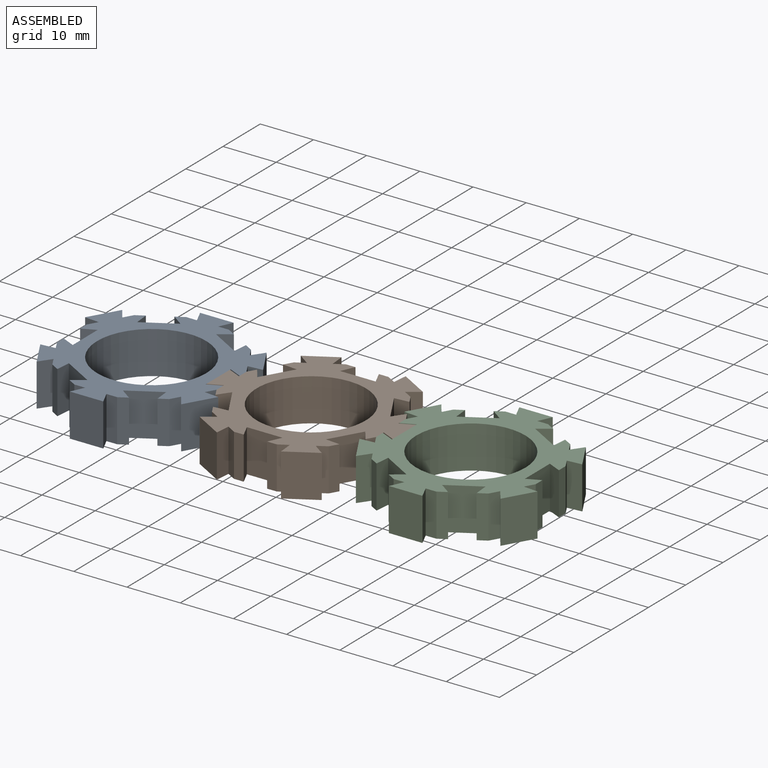
[diagram: assembled view]
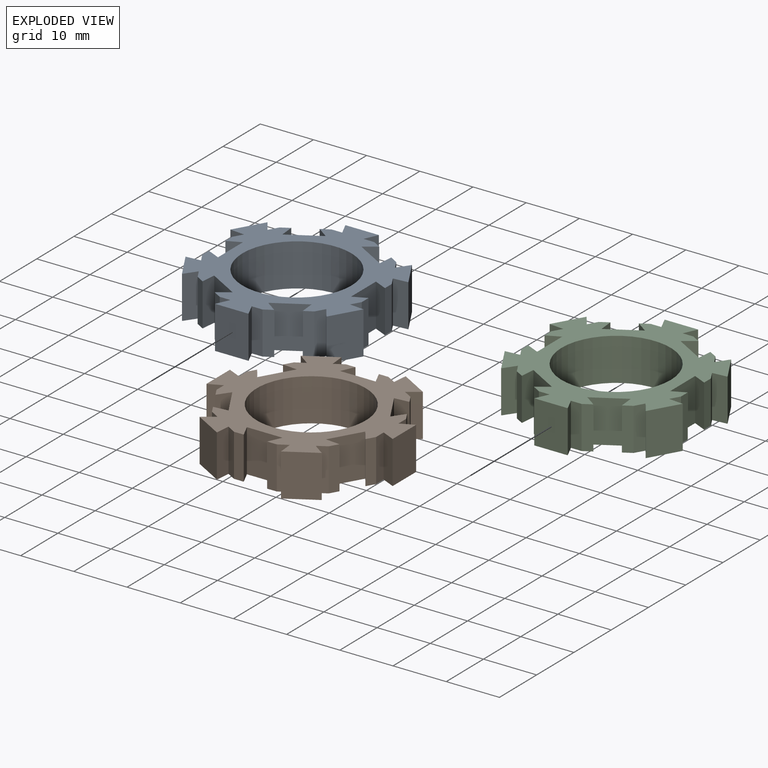
[diagram: exploded view]
GUIDED TOUR — MATED ASSEMBLY (Onshape document d0f964e4c2abdf80b7cb68ac, AutoMate assembly d0f964e4c2abdf80b7cb68ac_d33c1252032fe36a590fd62e_a8c66a222fe59a05ba9b0ecd_default)

This assembly has 3 components, labeled P0..P2 below (a component is one placed occurrence of a part; the same part can appear more than once), held together by 2 mates. A mate is a constraint between two components; its type names the relative motion it leaves free:
  PLANAR — leaves sliding in the plane through the listed point (normal = the listed direction) and rotation about that normal free.
Axis/direction vectors are unit vectors and 'through' points are millimeter coordinates, both in the assembly's world frame.

MATES
  1. PLANAR "Planar 2": P0 <-> P1, direction (0.000, -1.000, 0.000) through (-10.77, 34.13, 4.00) mm
  2. PLANAR "Planar 1": P2 <-> P1, direction (0.000, 1.000, 0.000) through (24.23, 34.13, 4.00) mm

ASSEMBLY ORDER
  1. P1 — the base component [order heuristic]
  2. P0 [order heuristic]
  3. P2 [order heuristic]
Order-tag legend:
  [order heuristic] — this assembly is geometrically interlocked (no collision-free removal order exists), so components are listed in mate-graph order; insertion feasibility is not verified.

Of the 3 components, 3 carry the full construction recipe — the FeatureScript program that regenerates the part's solid from scratch; the rest are supplied as boundary geometry only.
Each toured component is shown spotlighted twice — in the assembled view, then in the exploded view, where a leader line traces a displaced component back to its assembled socket (saturated green if recipe-attached, orange if geometry-only; every other component desaturated gray) — followed by its recipe or geometry summary and the mates that hold it.
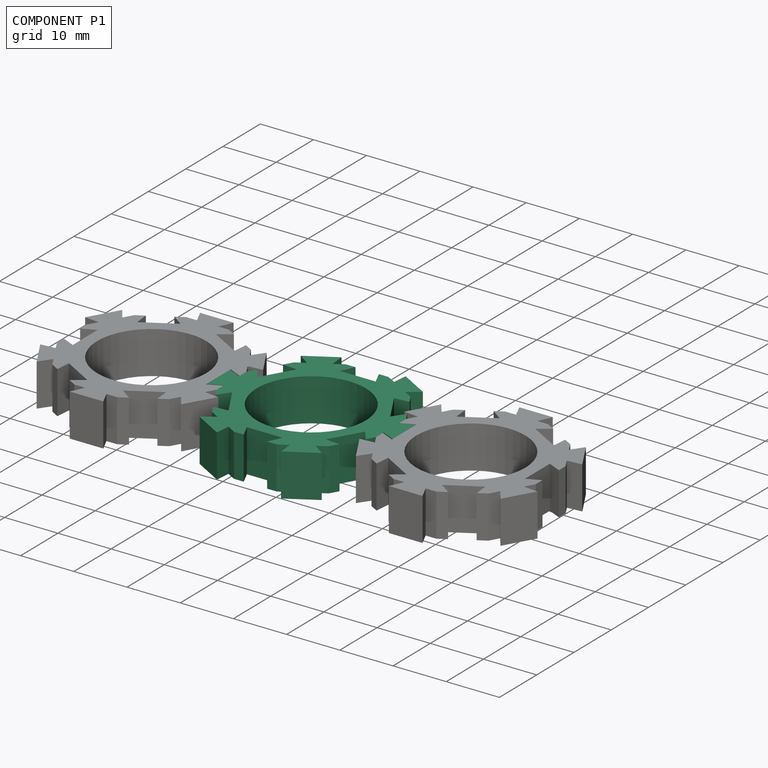
[diagram: component P1 — assembled]
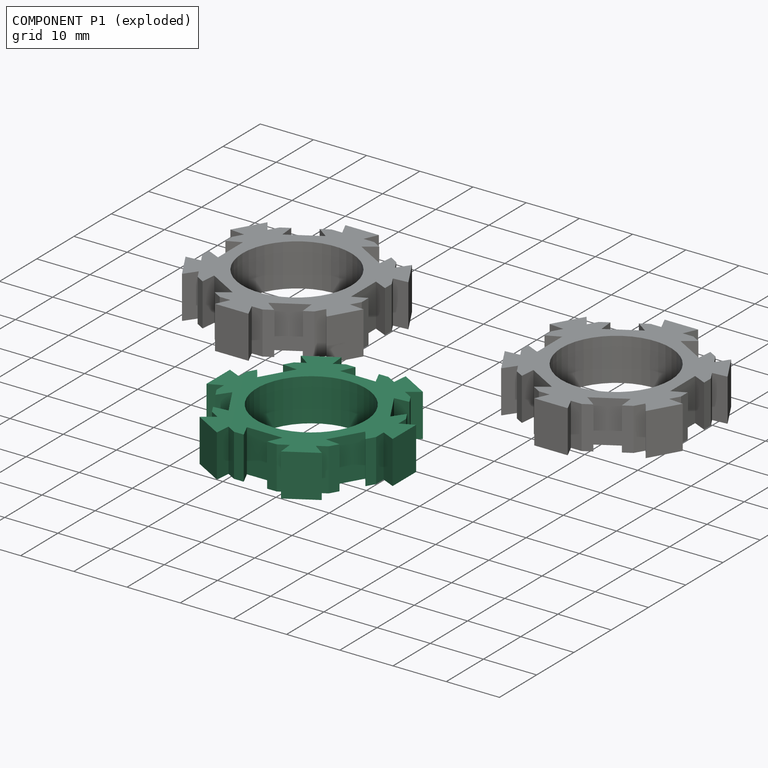
[diagram: component P1 — exploded]
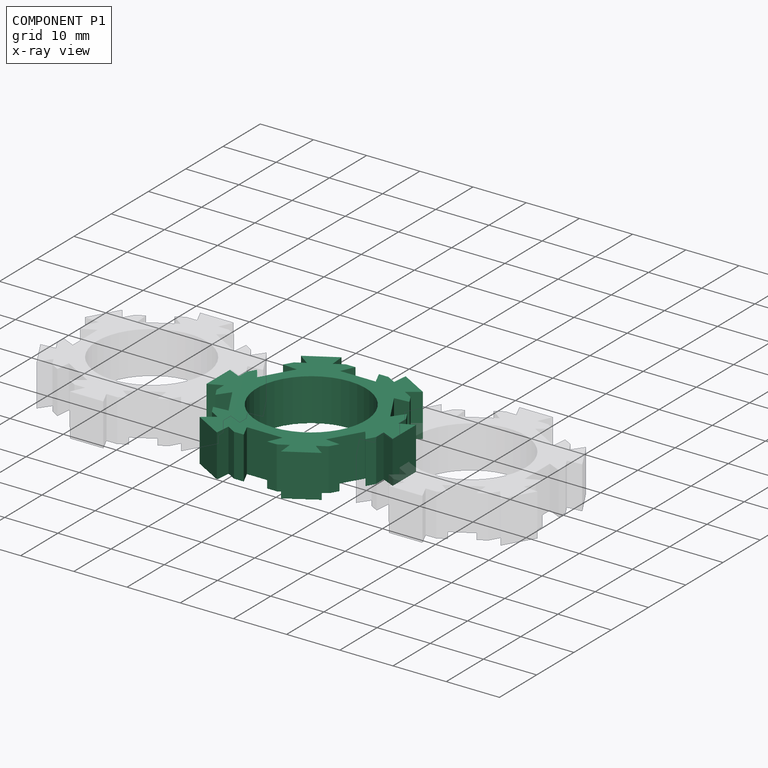
[diagram: component P1 — x-ray view]
COMPONENT P1 — same part as P0 (CADFS 00834193); its construction recipe is shown at P0.
Held by: PLANAR mate "Planar 2" to P0; PLANAR mate "Planar 1" to P2.
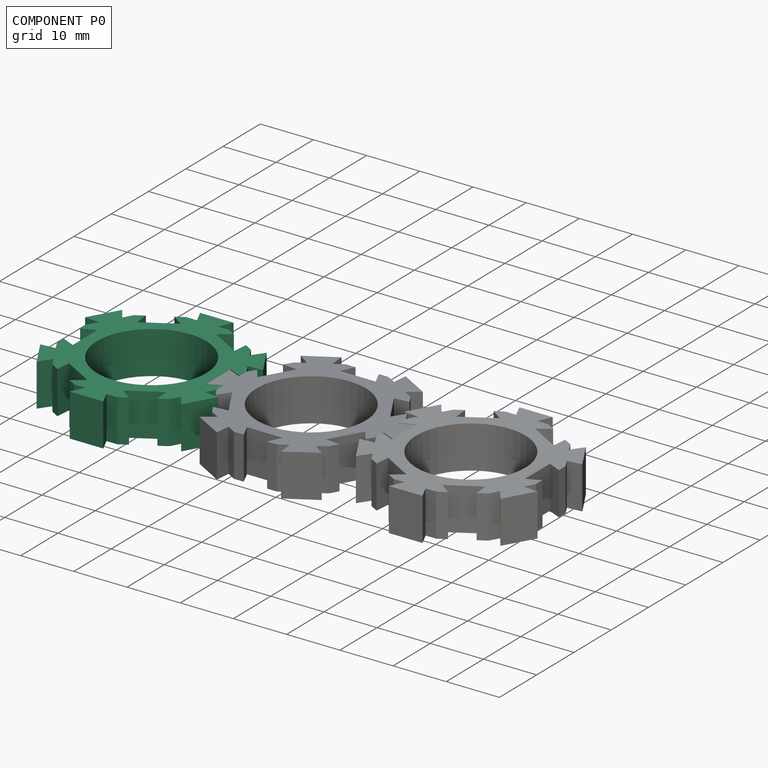
[diagram: component P0 — assembled]
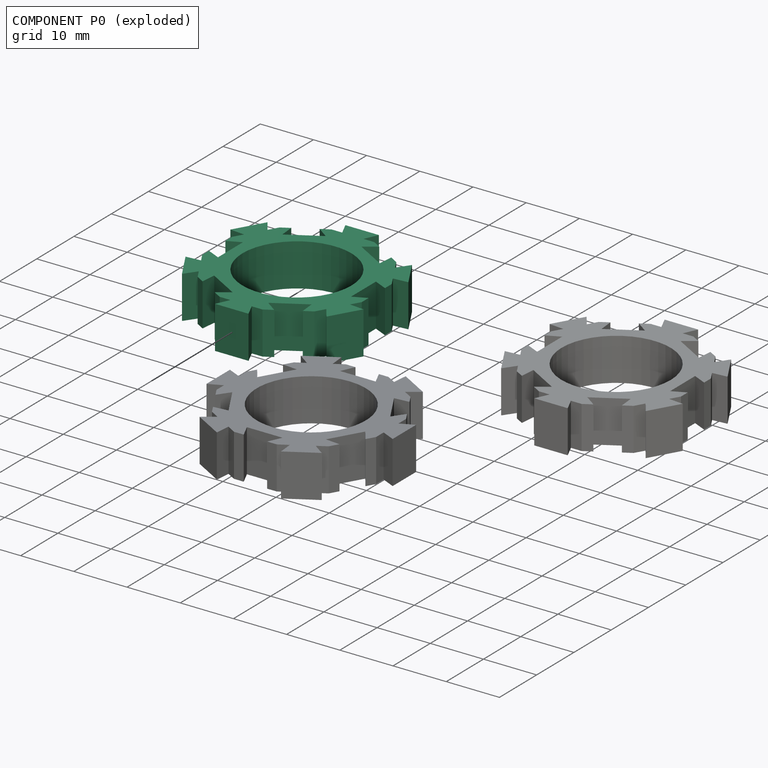
[diagram: component P0 — exploded]
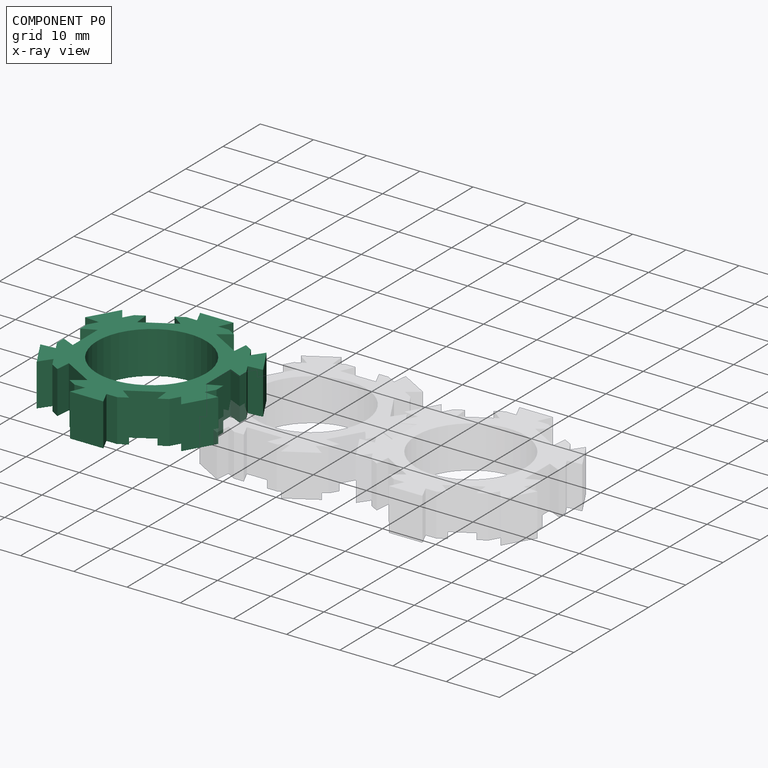
[diagram: component P0 — x-ray view]
COMPONENT P0 — recipe-attached (CADFS 00834193, mesh-verified: the recipe's output STEP matches this component's geometry to below the mesh-comparison resolution (tessellation chordal tolerance ~0.0736 mm)).
Held by: PLANAR mate "Planar 2" to P1.
Construction recipe (FeatureScript — the CAD program that rebuilds this solid; sketch coordinates are in the units given by the * unit suffixes, e.g. mm):

FeatureScript 1511;
import(path : "onshape/std/geometry.fs", version : "1511.0");
import(path : "onshape/std/common.fs", version : "1511.0");
const mm = millimeter;
const VERTEX = EntityType.VERTEX;
const EDGE = EntityType.EDGE;
const FACE = EntityType.FACE;
const BODY = EntityType.BODY;
function v(x, y){return vector(x, y);}
function OD(order){return orderDisambiguation(order);}
function OSD(set){return originalSetDisambiguation(set);}
function TD(topology){return topologyDisambiguation(topology);}
function TDD(query){return trueDependencyDisambiguation(query);}
function sQuery(a, b, c) {return sketchEntityQuery(a, b, c);}

annotation { "Feature Type Name" : "Feature", "Feature Type Description" : "" }
export const myFeature = defineFeature(function(context is Context, id is Id, definition is map)
    precondition{}
    {
        {
            var Q0;
            Q0=qCreatedBy(makeId("Top.planeOp"),FACE);
            var sketch = newSketch(context, id + "F0", { "sketchPlane" : qUnion([Q0])});
            skCircle(sketch, "E0", {"center": v(54.4, 0) * mm, "radius": 10.25 * mm});
            skLineSegment(sketch, "E1.1", {"start": v(57.74, 12.5) * mm, "end": v(63.54, 9.15) * mm});
            skLineSegment(sketch, "E1.3", {"start": v(66.9, 3.35) * mm, "end": v(66.9, -3.35) * mm});
            skLineSegment(sketch, "E1.5", {"start": v(63.54, -9.15) * mm, "end": v(57.74, -12.5) * mm});
            skLineSegment(sketch, "E1.7", {"start": v(51.04, -12.5) * mm, "end": v(45.24, -9.15) * mm});
            skLineSegment(sketch, "E1.9", {"start": v(41.9, -3.35) * mm, "end": v(41.9, 3.35) * mm});
            skLineSegment(sketch, "E1.11", {"start": v(45.24, 9.15) * mm, "end": v(51.04, 12.5) * mm});
            skPoint(sketch, "E1.0.midPoint", {"position": v(54.4, 12.5) * mm});
            skLineSegment(sketch, "E2.0", {"start": v(50.38, 15) * mm, "end": v(52.4, 15) * mm});
            skLineSegment(sketch, "E2.1", {"start": v(58.41, 15) * mm, "end": v(59.99, 14.1) * mm});
            skLineSegment(sketch, "E2.2", {"start": v(65.38, 10.98) * mm, "end": v(66.38, 9.23) * mm});
            skLineSegment(sketch, "E2.3", {"start": v(69.4, 4.02) * mm, "end": v(69.4, 2.2) * mm});
            skLineSegment(sketch, "E2.4", {"start": v(69.4, -4.02) * mm, "end": v(68.38, -5.77) * mm});
            skLineSegment(sketch, "E2.5", {"start": v(65.38, -10.98) * mm, "end": v(63.8, -11.9) * mm});
            skLineSegment(sketch, "E2.6", {"start": v(58.41, -15) * mm, "end": v(56.4, -15) * mm});
            skLineSegment(sketch, "E2.7", {"start": v(50.38, -15) * mm, "end": v(48.8, -14.1) * mm});
            skLineSegment(sketch, "E2.8", {"start": v(43.41, -10.98) * mm, "end": v(42.4, -9.23) * mm});
            skLineSegment(sketch, "E2.9", {"start": v(39.4, -4.02) * mm, "end": v(39.4, -2.2) * mm});
            skLineSegment(sketch, "E2.10", {"start": v(39.4, 4.02) * mm, "end": v(40.4, 5.77) * mm});
            skLineSegment(sketch, "E2.11", {"start": v(43.41, 10.98) * mm, "end": v(44.99, 11.9) * mm});
            skPoint(sketch, "E2.0.midPoint", {"position": v(54.4, 15) * mm});
            skLineSegment(sketch, "E3.1.0", {"start": v(48.8, 14.1) * mm, "end": v(51.04, 12.5) * mm});
            skLineSegment(sketch, "E3.1.1", {"start": v(44.99, 11.9) * mm, "end": v(45.24, 9.15) * mm});
            skLineSegment(sketch, "E3.3.0", {"start": v(39.4, 2.2) * mm, "end": v(41.9, 3.35) * mm});
            skLineSegment(sketch, "E3.3.1", {"start": v(39.4, -2.2) * mm, "end": v(41.9, -3.35) * mm});
            skLineSegment(sketch, "E3.5.0", {"start": v(44.99, -11.9) * mm, "end": v(45.24, -9.15) * mm});
            skLineSegment(sketch, "E3.5.1", {"start": v(48.8, -14.1) * mm, "end": v(51.04, -12.5) * mm});
            skLineSegment(sketch, "E3.7.0", {"start": v(59.99, -14.1) * mm, "end": v(57.74, -12.5) * mm});
            skLineSegment(sketch, "E3.7.1", {"start": v(63.8, -11.9) * mm, "end": v(63.54, -9.15) * mm});
            skLineSegment(sketch, "E3.9.0", {"start": v(69.4, -2.2) * mm, "end": v(66.9, -3.35) * mm});
            skLineSegment(sketch, "E3.9.1", {"start": v(69.4, 2.2) * mm, "end": v(66.9, 3.35) * mm});
            skLineSegment(sketch, "E3.11.0", {"start": v(63.8, 11.9) * mm, "end": v(63.54, 9.15) * mm});
            skLineSegment(sketch, "E3.11.1", {"start": v(59.99, 14.1) * mm, "end": v(57.74, 12.5) * mm});
            skLineSegment(sketch, "E4", {"start": v(57.74, 15) * mm, "end": v(57.54, 15) * mm});
            skLineSegment(sketch, "E5", {"start": v(57.54, 17.5) * mm, "end": v(56.4, 15) * mm});
            skLineSegment(sketch, "E6.MirrorCS", {"start": v(51.24, 17.5) * mm, "end": v(52.4, 15) * mm});
            skLineSegment(sketch, "E7", {"start": v(51.24, 17.5) * mm, "end": v(57.54, 17.5) * mm});
            skLineSegment(sketch, "E8.1.0", {"start": v(37.66, 6.02) * mm, "end": v(40.4, 5.77) * mm});
            skLineSegment(sketch, "E8.1.1", {"start": v(37.66, 6.02) * mm, "end": v(40.81, 11.48) * mm});
            skLineSegment(sketch, "E8.1.2", {"start": v(40.81, 11.48) * mm, "end": v(42.4, 9.23) * mm});
            skLineSegment(sketch, "E8.2.0", {"start": v(40.81, -11.48) * mm, "end": v(42.4, -9.23) * mm});
            skLineSegment(sketch, "E8.2.1", {"start": v(40.81, -11.48) * mm, "end": v(37.66, -6.02) * mm});
            skLineSegment(sketch, "E8.2.2", {"start": v(37.66, -6.02) * mm, "end": v(40.4, -5.77) * mm});
            skLineSegment(sketch, "E8.3.0", {"start": v(57.54, -17.5) * mm, "end": v(56.4, -15) * mm});
            skLineSegment(sketch, "E8.3.1", {"start": v(57.54, -17.5) * mm, "end": v(51.24, -17.5) * mm});
            skLineSegment(sketch, "E8.3.2", {"start": v(51.24, -17.5) * mm, "end": v(52.4, -15) * mm});
            skLineSegment(sketch, "E8.4.0", {"start": v(71.12, -6.02) * mm, "end": v(68.38, -5.77) * mm});
            skLineSegment(sketch, "E8.4.1", {"start": v(71.12, -6.02) * mm, "end": v(67.98, -11.48) * mm});
            skLineSegment(sketch, "E8.4.2", {"start": v(67.98, -11.48) * mm, "end": v(66.38, -9.23) * mm});
            skLineSegment(sketch, "E8.5.0", {"start": v(67.97, 11.48) * mm, "end": v(66.38, 9.23) * mm});
            skLineSegment(sketch, "E8.5.1", {"start": v(67.97, 11.48) * mm, "end": v(71.12, 6.02) * mm});
            skLineSegment(sketch, "E8.5.2", {"start": v(71.12, 6.02) * mm, "end": v(68.38, 5.77) * mm});
            skLineSegment(sketch, "E9.trimOffspring", {"start": v(48.8, 14.1) * mm, "end": v(50.38, 15) * mm});
            skLineSegment(sketch, "E10.trimOffspring", {"start": v(56.4, 15) * mm, "end": v(58.41, 15) * mm});
            skLineSegment(sketch, "E11.trimOffspring", {"start": v(63.8, 11.9) * mm, "end": v(65.38, 10.98) * mm});
            skLineSegment(sketch, "E12.trimOffspring", {"start": v(42.4, 9.23) * mm, "end": v(43.41, 10.98) * mm});
            skLineSegment(sketch, "E13.trimOffspring", {"start": v(39.4, 2.2) * mm, "end": v(39.4, 4.02) * mm});
            skLineSegment(sketch, "E14.trimOffspring", {"start": v(40.4, -5.77) * mm, "end": v(39.4, -4.02) * mm});
            skLineSegment(sketch, "E15.trimOffspring", {"start": v(44.99, -11.9) * mm, "end": v(43.41, -10.98) * mm});
            skLineSegment(sketch, "E16.trimOffspring", {"start": v(52.4, -15) * mm, "end": v(50.38, -15) * mm});
            skLineSegment(sketch, "E17.trimOffspring", {"start": v(59.99, -14.1) * mm, "end": v(58.41, -15) * mm});
            skLineSegment(sketch, "E18.trimOffspring", {"start": v(69.4, -2.2) * mm, "end": v(69.4, -4.02) * mm});
            skLineSegment(sketch, "E19.trimOffspring", {"start": v(68.38, 5.77) * mm, "end": v(69.4, 4.02) * mm});
            skLineSegment(sketch, "E20.trimOffspring", {"start": v(66.38, -9.23) * mm, "end": v(65.38, -10.98) * mm});
            skSolve(sketch);
        }
        {
            var Q0;
            Q0=makeQuery(id+"F0.imprint","IMPRINT",FACE,{"disambiguationData":[TD([[makeQuery(id+"F0.imprint","IMPRINT",EDGE,{"derivedFrom":sQuery(id+"F0.wireOp",EDGE,"E0")}),-1.0]])]});
            extrude(context, id + "F1", {"entities" : qUnion([Q0]), "depth" : 8 * mm, "offsetDistance" : 25 * mm});
        }
    });
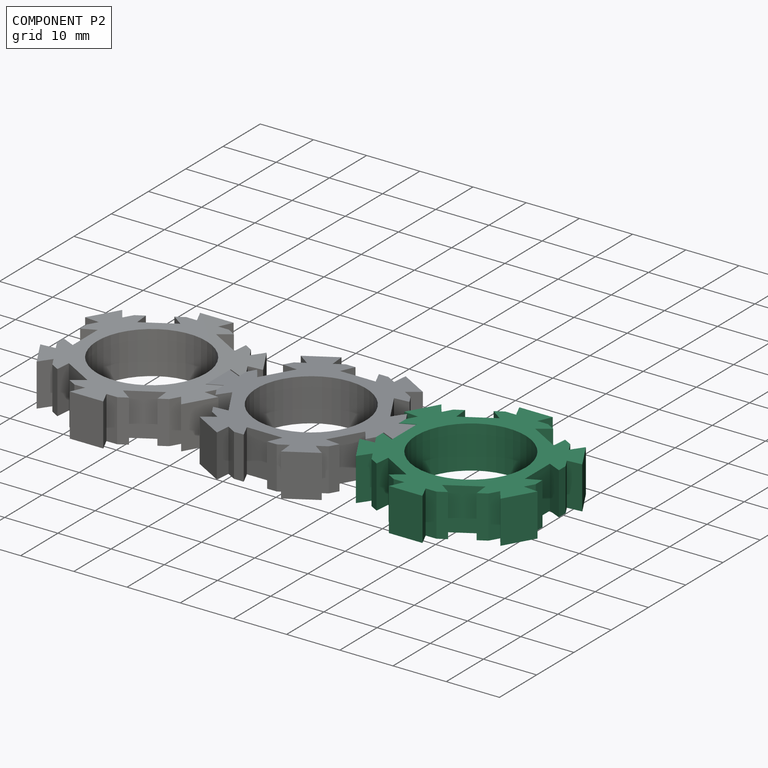
[diagram: component P2 — assembled]
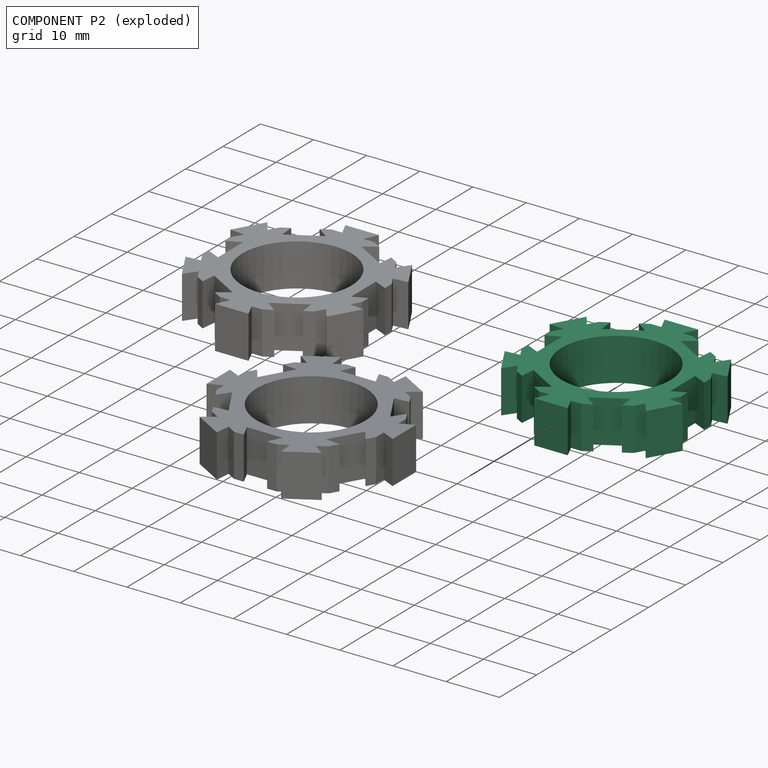
[diagram: component P2 — exploded]
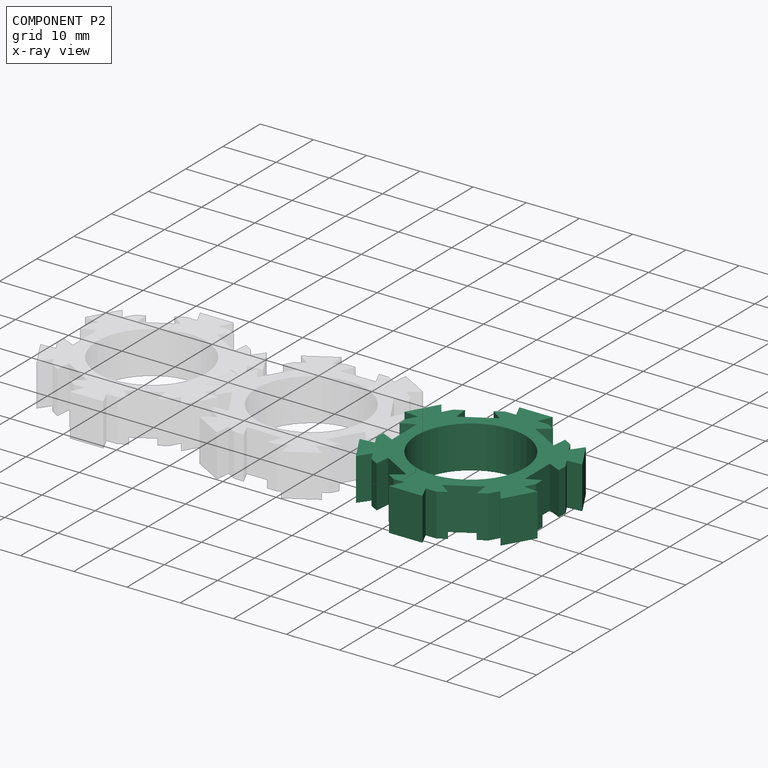
[diagram: component P2 — x-ray view]
COMPONENT P2 — same part as P0 (CADFS 00834193); its construction recipe is shown at P0.
Held by: PLANAR mate "Planar 1" to P1.
PROVENANCE & LICENSES
Assembly (occurrences, transforms, mates, per-part STEP geometry): AutoMate dataset, Zenodo record 7776208, CC0.
Construction recipes: CADFS (HuggingFace VladPyatov/CADFS, CC-BY-4.0, layered over the ABC dataset), FeatureScript reconstruction programs keyed by ABC model id.
Join: ABC meta listings map ABC model id -> Onshape documentId; within a shared document, parts are matched by geometric signature (bounding-box dims + volume at 0.1% relative tolerance, exact B-rep face/solid counts).
Verification: 3 of this assembly's 3 components carry a recipe attachment, and every attachment is mesh-verified: the CADFS STEP and the AutoMate member STEP were compared as meshes in their shared local frame (symmetric sampled-point-to-mesh distance); worst across the 3 attachments: below the mesh-comparison resolution (tessellation chordal tolerance ~0.0736 mm) on a 49 mm part.
Renders: orthographic iso camera (az 35 / el 25); the floor grid conveys scale (grid pitch printed in each image; no ruler). In the exploded view each component is displaced by its stored offset vector: the offsets alone carry the explosion direction (mate normal/axis signs are not orientation cues and do not encode it), and separation distances are assigned per mate-chain, not proportionally to assembly-order depth.
